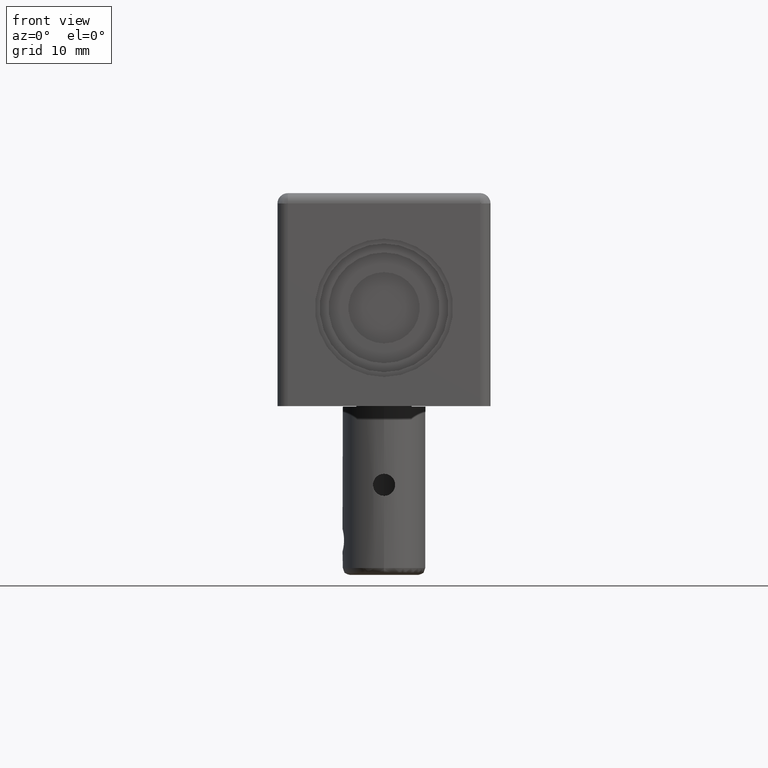
[diagram: clean part render]
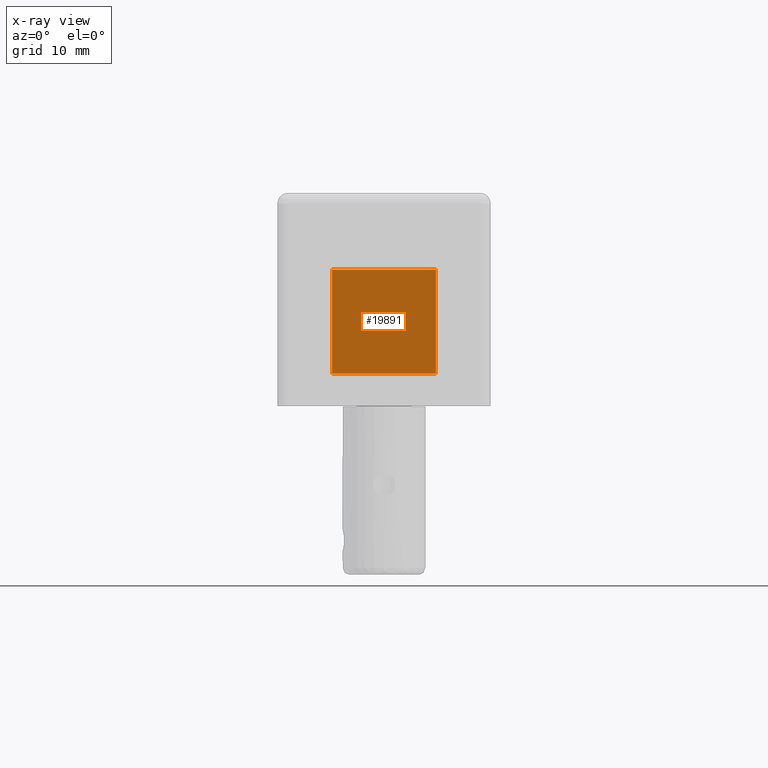
[diagram: x-ray — body ghosted, one internal face saturated and labeled with its STEP entity id]
A machine part, front view, then the same camera in x-ray: the body is ghosted and one INTERNAL B-rep face — a face not visible from any outside direction — is saturated and labeled: STEP entity #19891.
In plain terms, the highlighted planar face has unit normal (0, -1, 0).
Its self-contained STEP definition (entity closure, byte-faithful):
#19790=CARTESIAN_POINT('',(7.499999999999999,3.499999999999996,-7.499999999999996));
#19791=VERTEX_POINT('',#19790);
#19798=CARTESIAN_POINT('',(-7.500000000000001,3.499999999999996,-7.500000000000001));
#19799=VERTEX_POINT('',#19798);
#19800=CARTESIAN_POINT('',(-7.500000000000001,3.499999999999996,-7.500000000000001));
#19801=DIRECTION('',(1.0,0.0,0.0));
#19802=VECTOR('',#19801,15.0);
#19803=LINE('',#19800,#19802);
#19804=EDGE_CURVE('',#19799,#19791,#19803,.T.);
#19821=CARTESIAN_POINT('',(7.499999999999999,3.499999999999996,7.500000000000004));
#19822=VERTEX_POINT('',#19821);
#19829=CARTESIAN_POINT('',(7.499999999999999,3.499999999999996,-7.499999999999996));
#19830=DIRECTION('',(0.0,0.0,1.0));
#19831=VECTOR('',#19830,15.0);
#19832=LINE('',#19829,#19831);
#19833=EDGE_CURVE('',#19791,#19822,#19832,.T.);
#19845=CARTESIAN_POINT('',(-7.500000000000001,3.499999999999996,7.499999999999999));
#19846=VERTEX_POINT('',#19845);
#19853=CARTESIAN_POINT('',(7.499999999999999,3.499999999999996,7.499999999999999));
#19854=DIRECTION('',(-1.0,0.0,0.0));
#19855=VECTOR('',#19854,15.0);
#19856=LINE('',#19853,#19855);
#19857=EDGE_CURVE('',#19822,#19846,#19856,.T.);
#19870=CARTESIAN_POINT('',(-7.500000000000001,3.499999999999996,7.499999999999999));
#19871=DIRECTION('',(0.0,0.0,-1.0));
#19872=VECTOR('',#19871,15.0);
#19873=LINE('',#19870,#19872);
#19874=EDGE_CURVE('',#19846,#19799,#19873,.T.);
#19880=CARTESIAN_POINT('',(8.250000000000000,3.499999999999996,-8.250000000000002));
#19881=DIRECTION('',(0.0,-1.0,0.0));
#19882=DIRECTION('',(0.0,0.0,1.0));
#19883=AXIS2_PLACEMENT_3D('',#19880,#19881,#19882);
#19884=PLANE('',#19883);
#19885=ORIENTED_EDGE('',*,*,#19804,.T.);
#19886=ORIENTED_EDGE('',*,*,#19833,.T.);
#19887=ORIENTED_EDGE('',*,*,#19857,.T.);
#19888=ORIENTED_EDGE('',*,*,#19874,.T.);
#19889=EDGE_LOOP('',(#19885,#19886,#19887,#19888));
#19890=FACE_OUTER_BOUND('',#19889,.T.);
#19891=ADVANCED_FACE('',(#19890),#19884,.T.);